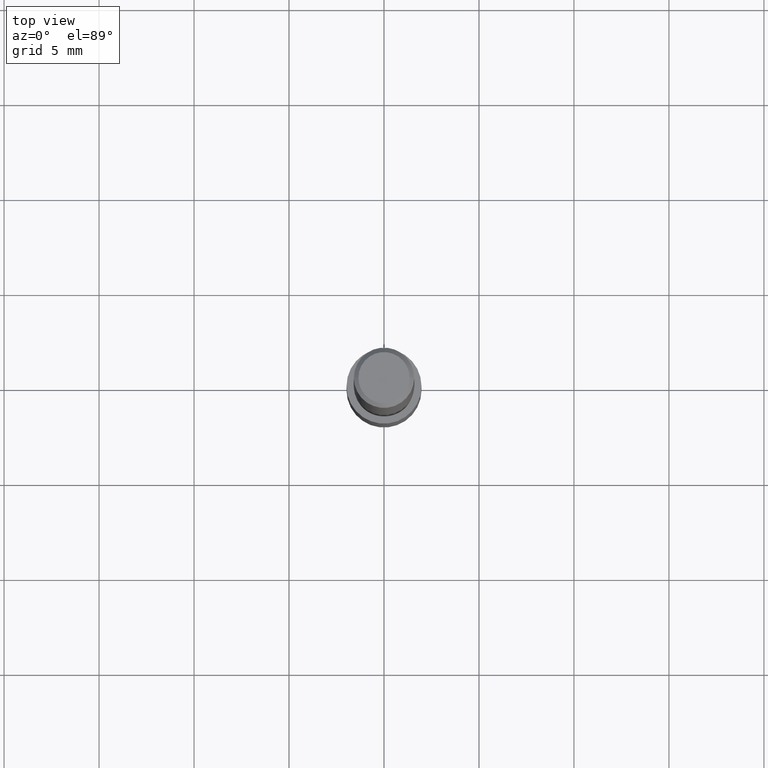
[diagram: clean part render]
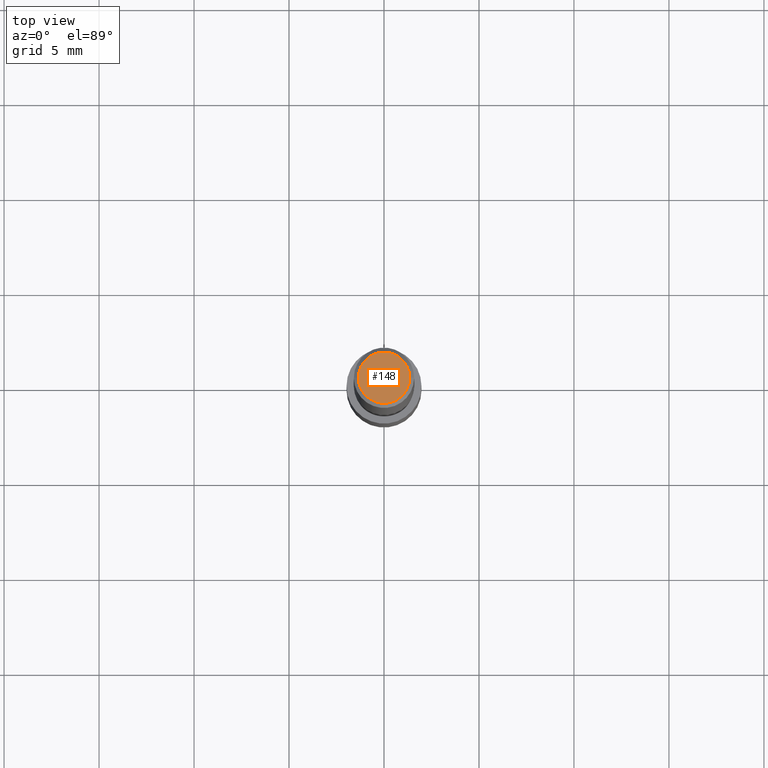
[diagram: same view with one face highlighted and labeled with its STEP entity id]
A machine part, top view. The second image highlights one B-rep face of the part: STEP entity #148.
In plain terms, the highlighted planar face has unit normal (0, -0, -1).
Its self-contained STEP definition (entity closure, byte-faithful):
#1 = DIRECTION ( 'NONE',  ( -2.445468806185136597E-29, 3.491481338843145583E-15, 1.000000000000000000 ) ) ;
#19 = VERTEX_POINT ( 'NONE', #303 ) ;
#69 = AXIS2_PLACEMENT_3D ( 'NONE', #73, #72, #128 ) ;
#72 = DIRECTION ( 'NONE',  ( 2.438088387897960049E-29, -3.491481338843145188E-15, -1.000000000000000000 ) ) ;
#73 = CARTESIAN_POINT ( 'NONE',  ( -3.743544432386672853E-50, 5.344789307371238476E-36, 1.530808498934197599E-21 ) ) ;
#85 = DIRECTION ( 'NONE',  ( 1.000000000000000000, -6.982962677686266711E-15, 4.876176628004948512E-29 ) ) ;
#105 = CIRCLE ( 'NONE', #292, 0.05312499999999999861 ) ;
#119 = EDGE_LOOP ( 'NONE', ( #263, #143 ) ) ;
#128 = DIRECTION ( 'NONE',  ( -1.000000000000000000, 6.982962677686265922E-15, -4.876176775795935793E-29 ) ) ;
#143 = ORIENTED_EDGE ( 'NONE', *, *, #330, .T. ) ;
#148 = ADVANCED_FACE ( 'NONE', ( #288 ), #281, .F. ) ;
#156 = DIRECTION ( 'NONE',  ( 1.000000000000000000, -6.982962677686266711E-15, 4.876176628004948512E-29 ) ) ;
#182 = AXIS2_PLACEMENT_3D ( 'NONE', #268, #216, #85 ) ;
#201 = EDGE_CURVE ( 'NONE', #240, #19, #105, .T. ) ;
#216 = DIRECTION ( 'NONE',  ( -2.445468806185136597E-29, 3.491481338843145583E-15, 1.000000000000000000 ) ) ;
#233 = CARTESIAN_POINT ( 'NONE',  ( -7.487088864773345706E-50, 1.068957861474247695E-35, 3.061616997868395197E-21 ) ) ;
#240 = VERTEX_POINT ( 'NONE', #266 ) ;
#263 = ORIENTED_EDGE ( 'NONE', *, *, #201, .T. ) ;
#266 = CARTESIAN_POINT ( 'NONE',  ( -0.05312499999999999861, 3.873362110279099094E-16, 3.061616995216862494E-21 ) ) ;
#268 = CARTESIAN_POINT ( 'NONE',  ( -7.487088864773345706E-50, 1.068957861474247695E-35, 3.061616997868395197E-21 ) ) ;
#281 = PLANE ( 'NONE',  #69 ) ;
#288 = FACE_OUTER_BOUND ( 'NONE', #119, .T. ) ;
#292 = AXIS2_PLACEMENT_3D ( 'NONE', #233, #1, #156 ) ;
#303 = CARTESIAN_POINT ( 'NONE',  ( 0.05312499999999999861, -4.129888592719939842E-16, 3.061617000609493422E-21 ) ) ;
#329 = CIRCLE ( 'NONE', #182, 0.05312499999999999861 ) ;
#330 = EDGE_CURVE ( 'NONE', #19, #240, #329, .T. ) ;